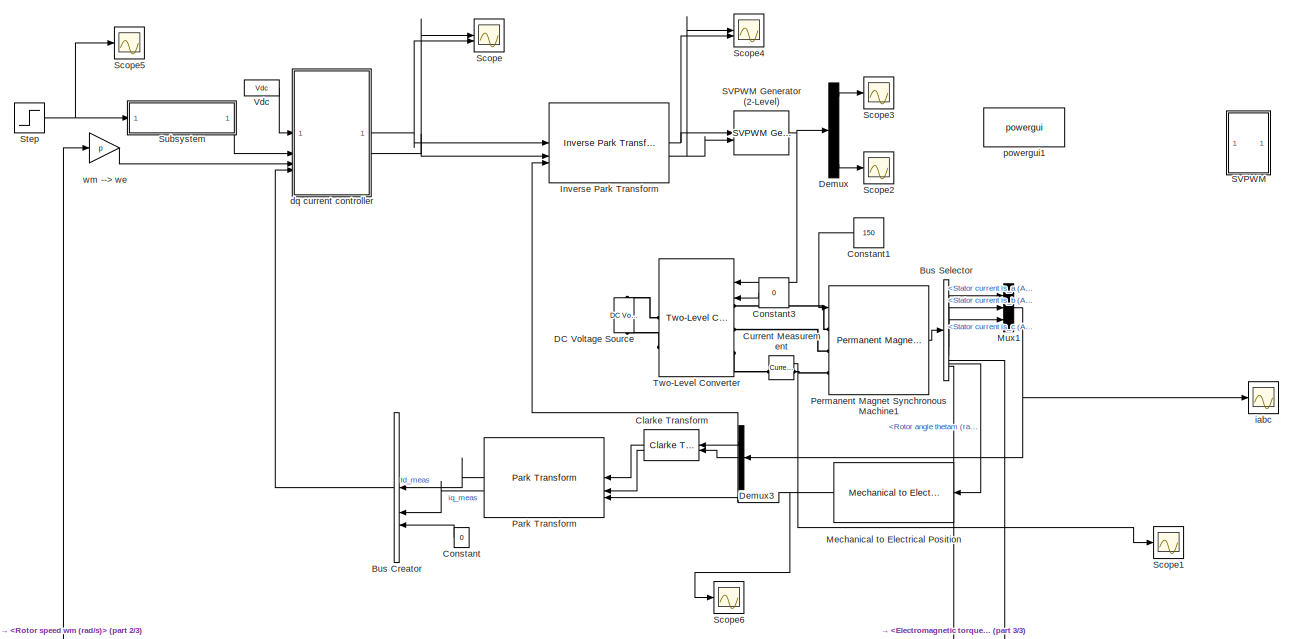
[diagram: root canvas - part 1/3, full width, top band]
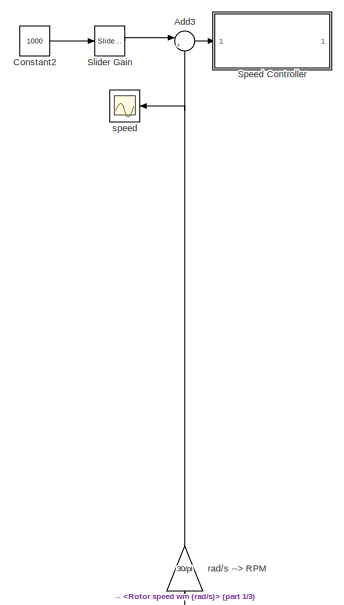
[diagram: root canvas - part 2/3, middle left region]
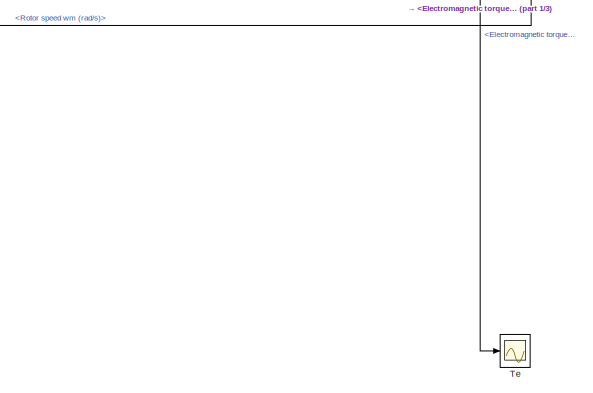
[diagram: root canvas - part 3/3, bottom right region]
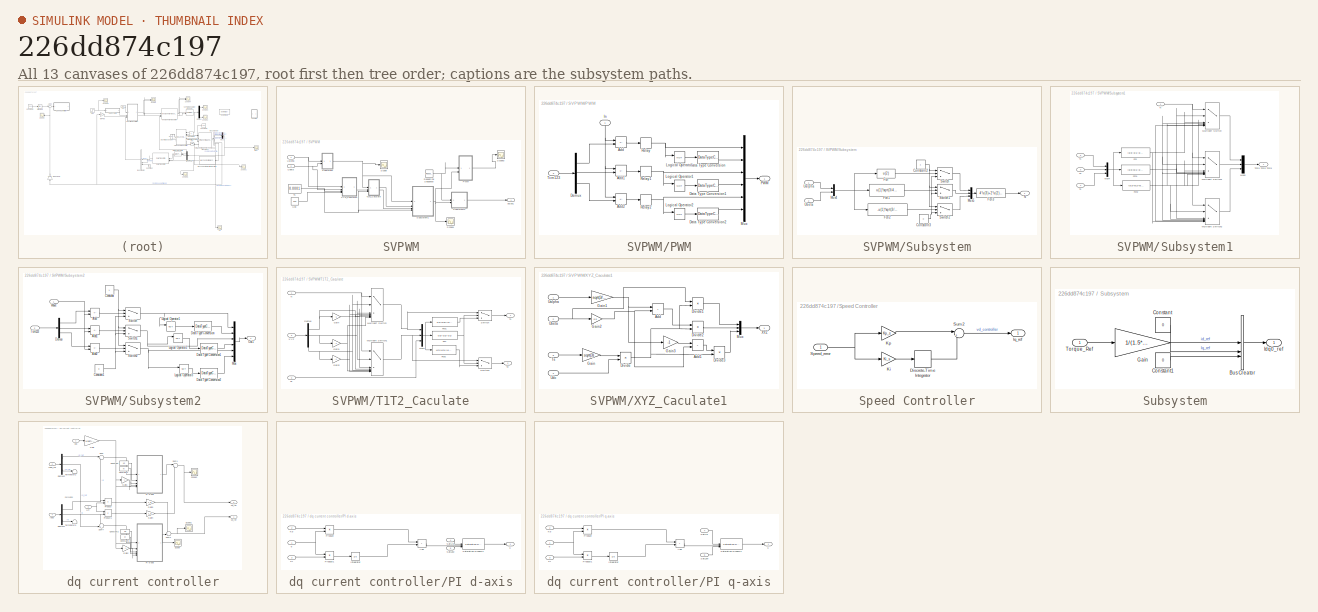
[diagram: thumbnail index - all 13 canvases of the model, root first then tree order]
MODEL slx_226dd874c197
KIND model
CONFIG AbsTol = auto
CONFIG EnableMultiTasking = on
CONFIG FixedStep = 0.0002
CONFIG InitFcn = Ts = 10e-6;\n\nR = 0.958;\nLd = 5.25e-3;\nLq = 12e-3;\nPn = 4;\nflux = 0.1827;
CONFIG MaxStep = auto
CONFIG MinStep = auto
CONFIG RelTol = 1e-4
CONFIG SampleTimeConstraint = Unconstrained
CONFIG SolverName = VariableStepAuto
CONFIG StartTime = 0.0
CONFIG StopTime = 1
BLOCK [Sum] Add3
  Inputs = |+-
BLOCK [BusCreator] Bus Creator
  DisplayOption = bar
  InheritFromInputs = on
  Inputs = 3
  NameLocation = top
BLOCK [BusSelector] Bus Selector
  OutputSignals = Stator current is_a (A),Stator current is_b (A),Stator current is_c (A),Rotor speed wm (rad/s),Rotor angle thetam (rad),Electromagnetic torque Te (N*m)
BLOCK [Reference] Clarke Transform  REF=mcbcontrolslib/Clarke Transform
  LibrarySourceBlock = mcbhdllib/Controls/Math Transforms/Clarke Transform
  NameLocation = top
  SourceBlock = mcbcontrolslib/Clarke Transform
  SourceType = Clarke Transform
BLOCK [Constant] Constant
  NameLocation = top
  Value = 0
BLOCK [Constant] Constant1
  NameLocation = top
  Value = 150
BLOCK [Constant] Constant2
  Value = 1000
BLOCK [Constant] Constant3
  NameLocation = top
  Value = 0
BLOCK [Reference] Current Measurement  REF=spsCurrentMeasurementLib/Current Measurement
  LibrarySourceBlock = sps_lib/Sensors and Measurements/Current Measurement
  SourceBlock = spsCurrentMeasurementLib/Current Measurement
  SourceType = Current Measurement
BLOCK [Reference] DC Voltage Source  REF=spsDCVoltageSourceLib/DC Voltage Source
  LibrarySourceBlock = sps_lib/Sources/DC Voltage Source
  SourceBlock = spsDCVoltageSourceLib/DC Voltage Source
  SourceType = DC Voltage Source
BLOCK [Demux] Demux
  Outputs = 6
BLOCK [Demux] Demux3
  NameLocation = top
  Outputs = 3
BLOCK [Reference] Inverse Park Transform  REF=mcbcontrolslib/Inverse Park Transform
  LibrarySourceBlock = mcbhdllib/Controls/Math Transforms/Inverse Park Transform
  SourceBlock = mcbcontrolslib/Inverse Park Transform
  SourceType = Inverse Park Transform
BLOCK [Reference] Mechanical to Electrical Position  REF=mcbpositiondecoderlib/Mechanical to Electrical Position
  LibrarySourceBlock = mcblib/Sensor Decoders/Mechanical to Electrical Position
  NameLocation = top
  SourceBlock = mcbpositiondecoderlib/Mechanical to Electrical Position
  SourceType = Mechanical to Electrical Position
BLOCK [Mux] Mux1
  DisplayOption = bar
  Inputs = 3
BLOCK [Reference] Park Transform  REF=mcbcontrolslib/Park Transform
  LibrarySourceBlock = mcbhdllib/Controls/Math Transforms/Park Transform
  NameLocation = top
  SourceBlock = mcbcontrolslib/Park Transform
  SourceType = Park Transform
BLOCK [Reference] Permanent Magnet Synchronous Machine1  REF=spsPermanentMagnetSynchronousMachineLib/Permanent Magnet
Synchronous Machine
  LibrarySourceBlock = sps_lib/Electrical Machines/Permanent Magnet\nSynchronous Machine
  SourceBlock = spsPermanentMagnetSynchronousMachineLib/Permanent Magnet\nSynchronous Machine
  SourceType = Permanent Magnet Synchronous Machine
BLOCK [SubSystem] SVPWM
  Commented = on
BLOCK [Reference] SVPWM Generator (2-Level)  REF=spsSVPWMGenerator2LevelLib/SVPWM Generator
(2-Level)
  LibrarySourceBlock = sps_lib/Power Electronics/Power Electronics Control/SVPWM Generator\n(2-Level)
  SourceBlock = spsSVPWMGenerator2LevelLib/SVPWM Generator\n(2-Level)
  SourceType = SVPWM Generator (2-Level)
BLOCK [SubSystem] SVPWM/PWM
BLOCK [Sum] SVPWM/PWM/Add
  IconShape = rectangular
  Inputs = +-
BLOCK [Sum] SVPWM/PWM/Add1
  IconShape = rectangular
  Inputs = +-
BLOCK [Sum] SVPWM/PWM/Add2
  IconShape = rectangular
  Inputs = +-
BLOCK [DataTypeConversion] SVPWM/PWM/Data Type Conversion
  OutDataTypeStr = double
  RndMeth = Floor
  SaturateOnIntegerOverflow = off
BLOCK [DataTypeConversion] SVPWM/PWM/Data Type Conversion1
  OutDataTypeStr = double
  RndMeth = Floor
  SaturateOnIntegerOverflow = off
BLOCK [DataTypeConversion] SVPWM/PWM/Data Type Conversion2
  OutDataTypeStr = double
  RndMeth = Floor
  SaturateOnIntegerOverflow = off
BLOCK [Demux] SVPWM/PWM/Demux
  Outputs = 3
BLOCK [Inport] SVPWM/PWM/In
  NameLocation = right
BLOCK [Logic] SVPWM/PWM/Logical Operator
  AllPortsSameDT = off
  Operator = NOT
  OutDataTypeStr = boolean
BLOCK [Logic] SVPWM/PWM/Logical Operator1
  AllPortsSameDT = off
  Operator = NOT
  OutDataTypeStr = boolean
BLOCK [Logic] SVPWM/PWM/Logical Operator2
  AllPortsSameDT = off
  Operator = NOT
  OutDataTypeStr = boolean
BLOCK [Mux] SVPWM/PWM/Mux
  DisplayOption = bar
  Inputs = 6
BLOCK [Outport] SVPWM/PWM/PWM
  VectorParamsAs1DForOutWhenUnconnected = off
BLOCK [Relay] SVPWM/PWM/Relay
  OffSwitchValue = -eps
BLOCK [Relay] SVPWM/PWM/Relay1
  OffSwitchValue = -eps
BLOCK [Relay] SVPWM/PWM/Relay2
  OffSwitchValue = -eps
BLOCK [Inport] SVPWM/PWM/Tcm123
  Port = 2
BLOCK [Reference] SVPWM/Repeating Sequence  REF=simulink/Sources/Repeating
Sequence
  SourceBlock = simulink/Sources/Repeating\nSequence
  SourceType = Repeating table
BLOCK [Scope] SVPWM/Scope
  Floating = off
  NumInputPorts = 1
  ScopeSpecificationString = Simulink.scopes.TimeScopeBlockCfg('CurrentConfiguration', extmgr.ConfigurationSet(extmgr.Configuration('Core','General UI',true),extmgr.Configuration('Core','Source UI',true),extmgr.Configuration('Sources','WiredSimulink',true,'DataLoggingVariableName','ScopeData2'),extmgr.Configuration('Visuals','Time Domain',true,'SerializedDisplays',{struct('MinYLimReal','0.375','MaxYLimReal','6.625','YLabelRea...<+1472ch>
BLOCK [Scope] SVPWM/Scope1
  Floating = off
  NumInputPorts = 1
  ScopeSpecificationString = Simulink.scopes.TimeScopeBlockCfg('CurrentConfiguration', extmgr.ConfigurationSet(extmgr.Configuration('Core','General UI',true),extmgr.Configuration('Core','Source UI',true),extmgr.Configuration('Sources','WiredSimulink',true,'DataLoggingVariableName','ScopeData4'),extmgr.Configuration('Visuals','Time Domain',true,'SerializedDisplays',{struct('MinYLimReal','-0.000006','MaxYLimReal','0.000056','YL...<+1498ch>
BLOCK [Scope] SVPWM/Scope3
  Floating = off
  NumInputPorts = 1
  ScopeSpecificationString = Simulink.scopes.TimeScopeBlockCfg('CurrentConfiguration', extmgr.ConfigurationSet(extmgr.Configuration('Core','General UI',true),extmgr.Configuration('Core','Source UI',true),extmgr.Configuration('Sources','WiredSimulink',true,'DataLoggingVariableName','ScopeData6'),extmgr.Configuration('Visuals','Time Domain',true,'SerializedDisplays',{struct('MinYLimReal','-0.125','MaxYLimReal','1.125','YLabelRe...<+1550ch>
BLOCK [SubSystem] SVPWM/Subsystem
BLOCK [Constant] SVPWM/Subsystem/Constant2
BLOCK [Constant] SVPWM/Subsystem/Constant3
  Value = 0
BLOCK [Fcn] SVPWM/Subsystem/Fcn
  Expr = u(2)
BLOCK [Fcn] SVPWM/Subsystem/Fcn1
  Expr = u(1)*sqrt(3/4)-0.5*u(2)
BLOCK [Fcn] SVPWM/Subsystem/Fcn2
  Expr = -u(1)*sqrt(3/4)-u(2)*0.5
BLOCK [Fcn] SVPWM/Subsystem/Fcn3
  Expr = 4*u(3)+2*u(2)+u(1)
BLOCK [Mux] SVPWM/Subsystem/Mux4
  DisplayOption = bar
  Inputs = 2
BLOCK [Mux] SVPWM/Subsystem/Mux5
  DisplayOption = bar
  Inputs = 3
BLOCK [Outport] SVPWM/Subsystem/N
  VectorParamsAs1DForOutWhenUnconnected = off
BLOCK [Switch] SVPWM/Subsystem/Switch
  Criteria = u2 > Threshold
  InputSameDT = off
  SaturateOnIntegerOverflow = off
BLOCK [Switch] SVPWM/Subsystem/Switch1
  Criteria = u2 > Threshold
  InputSameDT = off
  SaturateOnIntegerOverflow = off
BLOCK [Switch] SVPWM/Subsystem/Switch2
  Criteria = u2 > Threshold
  InputSameDT = off
  SaturateOnIntegerOverflow = off
BLOCK [Inport] SVPWM/Subsystem/Ualpha
BLOCK [Inport] SVPWM/Subsystem/Ubeta
  Port = 2
BLOCK [SubSystem] SVPWM/Subsystem1
BLOCK [Fcn] SVPWM/Subsystem1/Fcn
  Expr = (u(3)-u(1)-u(2))/4
BLOCK [Fcn] SVPWM/Subsystem1/Fcn1
  Expr = (u(3)+u(1)-u(2))/4
BLOCK [Fcn] SVPWM/Subsystem1/Fcn2
  Expr = (u(3)+u(2)+u(1))/4
BLOCK [MultiPortSwitch] SVPWM/Subsystem1/Multiport Switch
  InputSameDT = off
  Inputs = 6
  SaturateOnIntegerOverflow = off
BLOCK [MultiPortSwitch] SVPWM/Subsystem1/Multiport Switch1
  InputSameDT = off
  Inputs = 6
  SaturateOnIntegerOverflow = off
BLOCK [MultiPortSwitch] SVPWM/Subsystem1/Multiport Switch2
  InputSameDT = off
  Inputs = 6
  SaturateOnIntegerOverflow = off
BLOCK [Mux] SVPWM/Subsystem1/Mux4
  DisplayOption = bar
  Inputs = 3
BLOCK [Mux] SVPWM/Subsystem1/Mux5
  DisplayOption = bar
  Inputs = 3
BLOCK [Inport] SVPWM/Subsystem1/N
BLOCK [Inport] SVPWM/Subsystem1/T1
  Port = 2
BLOCK [Inport] SVPWM/Subsystem1/T2
  Port = 3
BLOCK [Outport] SVPWM/Subsystem1/Tcm1 Tcm2 Tcm3
  VectorParamsAs1DForOutWhenUnconnected = off
BLOCK [Inport] SVPWM/Subsystem1/Ts
  Port = 4
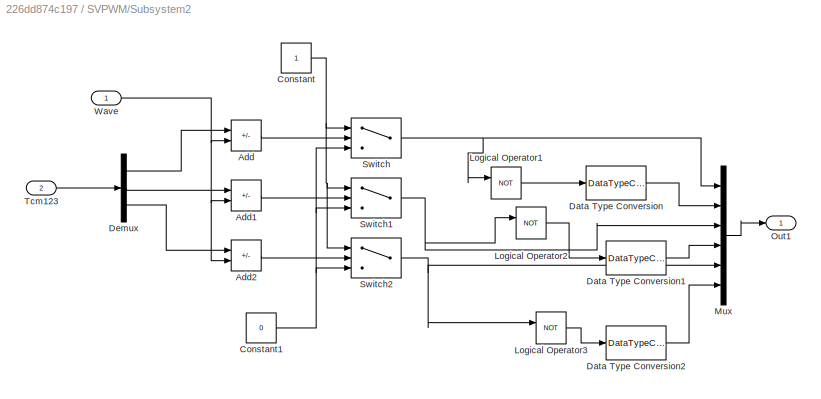
BLOCK [SubSystem] SVPWM/Subsystem2
BLOCK [Sum] SVPWM/Subsystem2/Add
  IconShape = rectangular
  Inputs = -+
BLOCK [Sum] SVPWM/Subsystem2/Add1
  IconShape = rectangular
  Inputs = -+
BLOCK [Sum] SVPWM/Subsystem2/Add2
  IconShape = rectangular
  Inputs = -+
BLOCK [Constant] SVPWM/Subsystem2/Constant
BLOCK [Constant] SVPWM/Subsystem2/Constant1
  Value = 0
BLOCK [DataTypeConversion] SVPWM/Subsystem2/Data Type Conversion
  OutDataTypeStr = double
  RndMeth = Floor
  SaturateOnIntegerOverflow = off
BLOCK [DataTypeConversion] SVPWM/Subsystem2/Data Type Conversion1
  OutDataTypeStr = double
  RndMeth = Floor
  SaturateOnIntegerOverflow = off
BLOCK [DataTypeConversion] SVPWM/Subsystem2/Data Type Conversion2
  OutDataTypeStr = double
  RndMeth = Floor
  SaturateOnIntegerOverflow = off
BLOCK [Demux] SVPWM/Subsystem2/Demux
  Outputs = 3
BLOCK [Logic] SVPWM/Subsystem2/Logical Operator1
  AllPortsSameDT = off
  Operator = NOT
  OutDataTypeStr = boolean
BLOCK [Logic] SVPWM/Subsystem2/Logical Operator2
  AllPortsSameDT = off
  Operator = NOT
  OutDataTypeStr = boolean
BLOCK [Logic] SVPWM/Subsystem2/Logical Operator3
  AllPortsSameDT = off
  Operator = NOT
  OutDataTypeStr = boolean
BLOCK [Mux] SVPWM/Subsystem2/Mux
  DisplayOption = bar
  Inputs = 6
BLOCK [Outport] SVPWM/Subsystem2/Out1
  VectorParamsAs1DForOutWhenUnconnected = off
BLOCK [Switch] SVPWM/Subsystem2/Switch
  Criteria = u2 > Threshold
  InputSameDT = off
  SaturateOnIntegerOverflow = off
BLOCK [Switch] SVPWM/Subsystem2/Switch1
  Criteria = u2 > Threshold
  InputSameDT = off
  SaturateOnIntegerOverflow = off
BLOCK [Switch] SVPWM/Subsystem2/Switch2
  Criteria = u2 > Threshold
  InputSameDT = off
  SaturateOnIntegerOverflow = off
BLOCK [Inport] SVPWM/Subsystem2/Tcm123
  Port = 2
BLOCK [Inport] SVPWM/Subsystem2/Wave
BLOCK [SubSystem] SVPWM/T1T2_Caculate
BLOCK [Demux] SVPWM/T1T2_Caculate/Demux
  Outputs = 3
BLOCK [Fcn] SVPWM/T1T2_Caculate/Fcn
  Expr = u(3)-u(2)-u(1)
BLOCK [Fcn] SVPWM/T1T2_Caculate/Fcn1
  Expr = u(1)*u(3)/(u(1)+u(2))
BLOCK [Fcn] SVPWM/T1T2_Caculate/Fcn2
  Expr = u(2)*u(3)/(u(1)+u(2))
BLOCK [Gain] SVPWM/T1T2_Caculate/Gain
  Gain = -1
BLOCK [Gain] SVPWM/T1T2_Caculate/Gain1
  Gain = -1
BLOCK [Gain] SVPWM/T1T2_Caculate/Gain2
  Gain = -1
BLOCK [MultiPortSwitch] SVPWM/T1T2_Caculate/Multiport Switch
  InputSameDT = off
  Inputs = 6
  SaturateOnIntegerOverflow = off
BLOCK [MultiPortSwitch] SVPWM/T1T2_Caculate/Multiport Switch1
  InputSameDT = off
  Inputs = 6
  SaturateOnIntegerOverflow = off
BLOCK [Mux] SVPWM/T1T2_Caculate/Mux4
  DisplayOption = bar
  Inputs = 3
BLOCK [Inport] SVPWM/T1T2_Caculate/N
BLOCK [Switch] SVPWM/T1T2_Caculate/Switch
  Criteria = u2 > Threshold
  InputSameDT = off
  SaturateOnIntegerOverflow = off
BLOCK [Switch] SVPWM/T1T2_Caculate/Switch1
  Criteria = u2 > Threshold
  InputSameDT = off
  SaturateOnIntegerOverflow = off
BLOCK [Outport] SVPWM/T1T2_Caculate/T1
  VectorParamsAs1DForOutWhenUnconnected = off
BLOCK [Outport] SVPWM/T1T2_Caculate/T2
  Port = 2
  VectorParamsAs1DForOutWhenUnconnected = off
BLOCK [Inport] SVPWM/T1T2_Caculate/Ts
  Port = 3
BLOCK [Inport] SVPWM/T1T2_Caculate/XYZ
  Port = 2
BLOCK [Constant] SVPWM/Ts
  Value = 0.0001
BLOCK [Inport] SVPWM/Ualpha
BLOCK [Inport] SVPWM/Ubeta
  Port = 2
BLOCK [Constant] SVPWM/Udc
  Value = 600
BLOCK [SubSystem] SVPWM/XYZ_Caculate1
BLOCK [Sum] SVPWM/XYZ_Caculate1/Add
  IconShape = rectangular
BLOCK [Sum] SVPWM/XYZ_Caculate1/Add1
  IconShape = rectangular
BLOCK [Product] SVPWM/XYZ_Caculate1/Divide
  Inputs = */
BLOCK [Product] SVPWM/XYZ_Caculate1/Divide1
  Inputs = **
BLOCK [Product] SVPWM/XYZ_Caculate1/Divide2
  Inputs = **
BLOCK [Product] SVPWM/XYZ_Caculate1/Divide3
  Inputs = **
BLOCK [Gain] SVPWM/XYZ_Caculate1/Gain
  Gain = sqrt(3)
BLOCK [Gain] SVPWM/XYZ_Caculate1/Gain1
  Gain = sqrt(3/4)
BLOCK [Gain] SVPWM/XYZ_Caculate1/Gain2
  Gain = 0.5
BLOCK [Gain] SVPWM/XYZ_Caculate1/Gain3
  Gain = -1
BLOCK [Mux] SVPWM/XYZ_Caculate1/Mux
  DisplayOption = bar
  Inputs = 3
BLOCK [Inport] SVPWM/XYZ_Caculate1/Ts
  Port = 3
BLOCK [Inport] SVPWM/XYZ_Caculate1/Ualpha
BLOCK [Inport] SVPWM/XYZ_Caculate1/Ubeta
  Port = 2
BLOCK [Inport] SVPWM/XYZ_Caculate1/Udc
  Port = 4
BLOCK [Outport] SVPWM/XYZ_Caculate1/XYZ 
  VectorParamsAs1DForOutWhenUnconnected = off
BLOCK [Outport] SVPWM/pulse1
  VectorParamsAs1DForOutWhenUnconnected = off
BLOCK [Scope] Scope
  Floating = off
  NumInputPorts = 2
  ScopeSpecificationString = Simulink.scopes.TimeScopeBlockCfg('CurrentConfiguration', extmgr.ConfigurationSet(extmgr.Configuration('Core','General UI',true),extmgr.Configuration('Core','Source UI',true),extmgr.Configuration('Sources','WiredSimulink',true,'DataLoggingVariableName','ScopeData2'),extmgr.Configuration('Visuals','Time Domain',true,'SerializedDisplays',{struct('MinYLimReal','-90.47604','MaxYLimReal','107.23716','Y...<+1557ch>
BLOCK [Scope] Scope1
  Floating = off
  NumInputPorts = 1
  ScopeSpecificationString = Simulink.scopes.TimeScopeBlockCfg('CurrentConfiguration', extmgr.ConfigurationSet(extmgr.Configuration('Core','General UI',true),extmgr.Configuration('Core','Source UI',true),extmgr.Configuration('Sources','WiredSimulink',true,'DataLoggingVariableName','ScopeData1'),extmgr.Configuration('Visuals','Time Domain',true,'SerializedDisplays',{struct('MinYLimReal','-154.88796','MaxYLimReal','573.10332','...<+1533ch>
BLOCK [Scope] Scope2
  Floating = off
  NumInputPorts = 1
  ScopeSpecificationString = Simulink.scopes.TimeScopeBlockCfg('CurrentConfiguration', extmgr.ConfigurationSet(extmgr.Configuration('Core','General UI',true),extmgr.Configuration('Core','Source UI',true),extmgr.Configuration('Sources','WiredSimulink',true,'DataLoggingVariableName','ScopeData2'),extmgr.Configuration('Visuals','Time Domain',true,'SerializedDisplays',{struct('MinYLimReal','0.04975','MaxYLimReal','1.03922','YLabe...<+1503ch>
BLOCK [Scope] Scope3
  Floating = off
  NumInputPorts = 1
  ScopeSpecificationString = Simulink.scopes.TimeScopeBlockCfg('CurrentConfiguration', extmgr.ConfigurationSet(extmgr.Configuration('Core','General UI',true),extmgr.Configuration('Core','Source UI',true),extmgr.Configuration('Sources','WiredSimulink',true,'DataLoggingVariableName','ScopeData3'),extmgr.Configuration('Visuals','Time Domain',true,'SerializedDisplays',{struct('MinYLimReal','-0.03127','MaxYLimReal','1.00463','YLab...<+1507ch>
BLOCK [Scope] Scope4
  Floating = off
  NumInputPorts = 2
  ScopeSpecificationString = Simulink.scopes.TimeScopeBlockCfg('CurrentConfiguration', extmgr.ConfigurationSet(extmgr.Configuration('Core','General UI',true),extmgr.Configuration('Core','Source UI',true),extmgr.Configuration('Sources','WiredSimulink',true,'DataLoggingVariableName','ScopeData1'),extmgr.Configuration('Visuals','Time Domain',true,'SerializedDisplays',{struct('MinYLimReal','-126.0196','MaxYLimReal','125.80318','Y...<+1600ch>
BLOCK [Scope] Scope5
  Floating = off
  NumInputPorts = 1
  ScopeSpecificationString = Simulink.scopes.TimeScopeBlockCfg('CurrentConfiguration', extmgr.ConfigurationSet(extmgr.Configuration('Core','General UI',true),extmgr.Configuration('Core','Source UI',true),extmgr.Configuration('Sources','WiredSimulink',true,'DataLoggingVariableName','ScopeData3'),extmgr.Configuration('Visuals','Time Domain',true,'SerializedDisplays',{struct('MinYLimReal','-2.5','MaxYLimReal','22.5','YLabelReal'...<+1465ch>
BLOCK [Scope] Scope6
  Floating = off
  NumInputPorts = 1
  ScopeSpecificationString = Simulink.scopes.TimeScopeBlockCfg('CurrentConfiguration', extmgr.ConfigurationSet(extmgr.Configuration('Core','General UI',true),extmgr.Configuration('Core','Source UI',true),extmgr.Configuration('Sources','WiredSimulink',true,'DataLoggingVariableName','ScopeData4'),extmgr.Configuration('Visuals','Time Domain',true,'SerializedDisplays',{struct('MinYLimReal','-0.28057','MaxYLimReal','6.40872','YLab...<+1500ch>
BLOCK [Reference] Slider Gain  REF=simulink/Math
Operations/Slider
Gain
  SourceBlock = simulink/Math\nOperations/Slider\nGain
  SourceType = Slider Gain
BLOCK [SubSystem] Speed Controller
BLOCK [DiscreteIntegrator] Speed Controller/Discrete-Time Integrator
  ICPrevOutput = DiscIntNeverNeededParam
  ICPrevScaledInput = DiscIntNeverNeededParam
  InitialConditionSetting = Auto
  SampleTime = Ts
BLOCK [Outport] Speed Controller/Iq_ref
BLOCK [Gain] Speed Controller/Ki
  Gain = Ki_s
BLOCK [Gain] Speed Controller/Kp
  Gain = Kp_s
BLOCK [Inport] Speed Controller/Speed_error
BLOCK [Sum] Speed Controller/Sum2
  Inputs = |++
BLOCK [Step] Step
  After = 20
  SampleTime = 0
  Time = 0.1
BLOCK [SubSystem] Subsystem
BLOCK [BusCreator] Subsystem/Bus Creator
  DisplayOption = bar
  InheritFromInputs = on
  Inputs = 3
BLOCK [Constant] Subsystem/Constant
  Value = 0
BLOCK [Constant] Subsystem/Constant1
  Value = 0
BLOCK [Gain] Subsystem/Gain
  Gain = 1/(1.5*p*Flux)
BLOCK [Outport] Subsystem/Idq0_ref
BLOCK [Inport] Subsystem/Torque_Ref
BLOCK [Scope] Te
  Floating = off
  NameLocation = top
  NumInputPorts = 2
  ScopeSpecificationString = Simulink.scopes.TimeScopeBlockCfg('CurrentConfiguration', extmgr.ConfigurationSet(extmgr.Configuration('Core','General UI',true),extmgr.Configuration('Core','Source UI',true),extmgr.Configuration('Sources','WiredSimulink',true,'DataLogging',true,'DataLoggingVariableName','Te','DataLoggingSaveFormat','StructureWithTime','DataLoggingDecimation','1','DataLoggingDecimateData',true),extmgr.Configuratio...<+1886ch>
BLOCK [Reference] Two-Level Converter  REF=spsTwoLevelConverterLib/Two-Level Converter
  SourceBlock = spsTwoLevelConverterLib/Two-Level Converter
  SourceType = Two-Level Converter
BLOCK [Constant] Vdc
  Value = Vdc
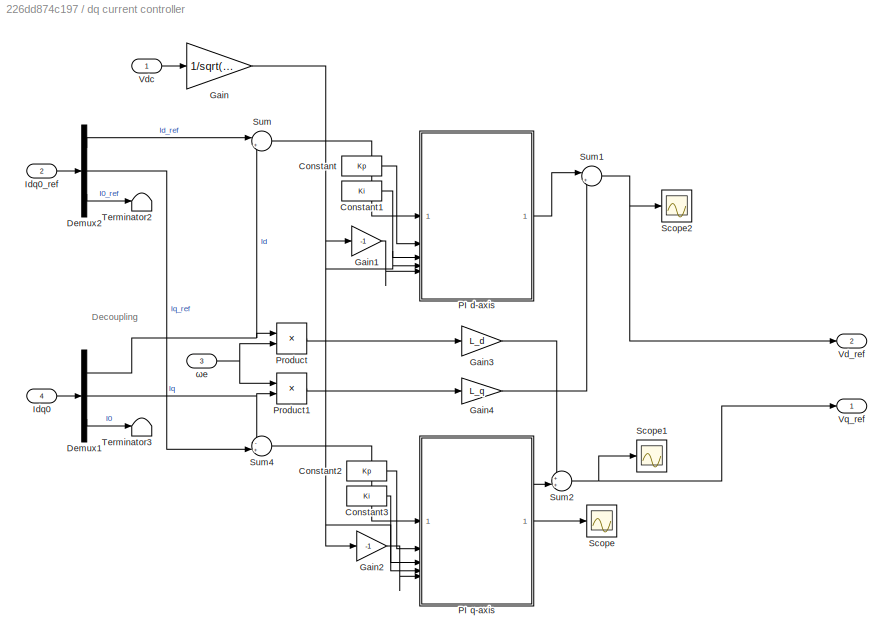
BLOCK [SubSystem] dq current controller
  NameLocation = top
BLOCK [Constant] dq current controller/Constant
  OutDataTypeStr = single
  Value = Kp
BLOCK [Constant] dq current controller/Constant1
  OutDataTypeStr = single
  Value = Ki
BLOCK [Constant] dq current controller/Constant2
  OutDataTypeStr = single
  Value = Kp
BLOCK [Constant] dq current controller/Constant3
  OutDataTypeStr = single
  Value = Ki
BLOCK [Demux] dq current controller/Demux1
  Outputs = 3
BLOCK [Demux] dq current controller/Demux2
  Outputs = 3
BLOCK [Gain] dq current controller/Gain
  Gain = 1/sqrt(2)
BLOCK [Gain] dq current controller/Gain1
  Gain = -1
BLOCK [Gain] dq current controller/Gain2
  Gain = -1
BLOCK [Gain] dq current controller/Gain3
  Gain = L_d
BLOCK [Gain] dq current controller/Gain4
  Gain = L_q
BLOCK [Inport] dq current controller/Idq0
  Port = 4
BLOCK [Inport] dq current controller/Idq0_ref
  Port = 2
BLOCK [SubSystem] dq current controller/PI d-axis
BLOCK [Sum] dq current controller/PI d-axis/Add
  IconShape = rectangular
BLOCK [Integrator] dq current controller/PI d-axis/Integrator
BLOCK [Inport] dq current controller/PI d-axis/Ki
  Port = 3
BLOCK [Inport] dq current controller/PI d-axis/Kp
  Port = 2
BLOCK [Product] dq current controller/PI d-axis/Product
BLOCK [Product] dq current controller/PI d-axis/Product1
BLOCK [Inport] dq current controller/PI d-axis/SatLow
  Port = 5
BLOCK [Inport] dq current controller/PI d-axis/SatUp
  NameLocation = top
  Port = 4
BLOCK [Reference] dq current controller/PI d-axis/Saturation Dynamic  REF=simulink/Discontinuities/Saturation
Dynamic
  SourceBlock = simulink/Discontinuities/Saturation\nDynamic
  SourceType = Saturation Dynamic
BLOCK [Inport] dq current controller/PI d-axis/e
BLOCK [Outport] dq current controller/PI d-axis/u
BLOCK [SubSystem] dq current controller/PI q-axis
BLOCK [Sum] dq current controller/PI q-axis/Add
  IconShape = rectangular
BLOCK [Integrator] dq current controller/PI q-axis/Integrator
BLOCK [Inport] dq current controller/PI q-axis/Ki
  Port = 3
BLOCK [Inport] dq current controller/PI q-axis/Kp
  Port = 2
BLOCK [Product] dq current controller/PI q-axis/Product
BLOCK [Product] dq current controller/PI q-axis/Product1
BLOCK [Inport] dq current controller/PI q-axis/SatLow
  Port = 5
BLOCK [Inport] dq current controller/PI q-axis/SatUp
  Port = 4
BLOCK [Reference] dq current controller/PI q-axis/Saturation Dynamic  REF=simulink/Discontinuities/Saturation
Dynamic
  SourceBlock = simulink/Discontinuities/Saturation\nDynamic
  SourceType = Saturation Dynamic
BLOCK [Inport] dq current controller/PI q-axis/e
BLOCK [Outport] dq current controller/PI q-axis/u
BLOCK [Product] dq current controller/Product
BLOCK [Product] dq current controller/Product1
BLOCK [Scope] dq current controller/Scope
  Floating = off
  NumInputPorts = 1
  ScopeSpecificationString = Simulink.scopes.TimeScopeBlockCfg('CurrentConfiguration', extmgr.ConfigurationSet(extmgr.Configuration('Core','General UI',true),extmgr.Configuration('Core','Source UI',true),extmgr.Configuration('Sources','WiredSimulink',true,'DataLoggingVariableName','ScopeData5'),extmgr.Configuration('Visuals','Time Domain',true,'SerializedDisplays',{struct('MinYLimReal','-79.54951','MaxYLimReal','8.83883','YLa...<+1461ch>
BLOCK [Scope] dq current controller/Scope1
  Floating = off
  NumInputPorts = 1
  ScopeSpecificationString = Simulink.scopes.TimeScopeBlockCfg('CurrentConfiguration', extmgr.ConfigurationSet(extmgr.Configuration('Core','General UI',true),extmgr.Configuration('Core','Source UI',true),extmgr.Configuration('Sources','WiredSimulink',true,'DataLoggingVariableName','ScopeData6'),extmgr.Configuration('Visuals','Time Domain',true,'SerializedDisplays',{struct('MinYLimReal','-858.05898','MaxYLimReal','95.33989','Y...<+1464ch>
BLOCK [Scope] dq current controller/Scope2
  Floating = off
  NumInputPorts = 1
  ScopeSpecificationString = Simulink.scopes.TimeScopeBlockCfg('CurrentConfiguration', extmgr.ConfigurationSet(extmgr.Configuration('Core','General UI',true),extmgr.Configuration('Core','Source UI',true),extmgr.Configuration('Sources','WiredSimulink',true,'DataLoggingVariableName','ScopeData7'),extmgr.Configuration('Visuals','Time Domain',true,'SerializedDisplays',{struct('MinYLimReal','-193.39656','MaxYLimReal','235.50362','...<+1466ch>
BLOCK [Sum] dq current controller/Sum
  Inputs = |+-
BLOCK [Sum] dq current controller/Sum1
  Inputs = |+-
BLOCK [Sum] dq current controller/Sum2
  Inputs = ++|
BLOCK [Sum] dq current controller/Sum4
  Inputs = -+|
BLOCK [Terminator] dq current controller/Terminator2
BLOCK [Terminator] dq current controller/Terminator3
BLOCK [Outport] dq current controller/Vd_ref
  Port = 2
BLOCK [Inport] dq current controller/Vdc
BLOCK [Outport] dq current controller/Vq_ref
BLOCK [Inport] dq current controller/ωe
  Port = 3
BLOCK [Scope] iabc
  Floating = off
  NumInputPorts = 1
  ScopeSpecificationString = Simulink.scopes.TimeScopeBlockCfg('CurrentConfiguration', extmgr.ConfigurationSet(extmgr.Configuration('Core','General UI',true),extmgr.Configuration('Core','Source UI',true),extmgr.Configuration('Sources','WiredSimulink',true,'DataLogging',true,'DataLoggingVariableName','Iabc','DataLoggingSaveFormat','StructureWithTime','DataLoggingDecimation','1','DataLoggingDecimateData',true),extmgr.Configurat...<+1958ch>
BLOCK [Reference] powergui1  REF=sps_lib/powergui
  LibrarySourceBlock = sps_lib/powergui
  Priority = 1
  SourceBlock = sps_lib/powergui
  SourceType = PSB option menu block
BLOCK [Gain] rad//s --> RPM
  Gain = 30/pi
  NameLocation = right
BLOCK [Scope] speed
  Floating = off
  NumInputPorts = 1
  ScopeSpecificationString = Simulink.scopes.TimeScopeBlockCfg('CurrentConfiguration', extmgr.ConfigurationSet(extmgr.Configuration('Core','General UI',true,'DisplayFullSourceName',true),extmgr.Configuration('Core','Source UI',true),extmgr.Configuration('Sources','WiredSimulink',true,'DataLogging',true,'DataLoggingVariableName','ScopeData2','DataLoggingSaveFormat','StructureWithTime','DataLoggingDecimation','1','DataLoggingDe...<+1898ch>
BLOCK [Gain] wm --> we
  Gain = p
ANNOTATION dq current controller: Decoupling
LINE Add3:1 -> Speed Controller:1
LINE Bus Creator:1 -> dq current controller:4
LINE Bus Selector:1 -> Mux1:1
LINE Bus Selector:2 -> Mux1:2
LINE Bus Selector:3 -> Mux1:3
NET Bus Selector:4 -> rad//s --> RPM:1, wm --> we:1
LINE Bus Selector:5 -> Mechanical to Electrical Position:1
LINE Bus Selector:6 -> Te:1
LINE Clarke Transform:1 -> Park Transform:1
LINE Clarke Transform:2 -> Park Transform:2
LINE Constant1:1 -> Permanent Magnet Synchronous Machine1:1
LINE Constant2:1 -> Slider Gain:1
LINE Constant3:1 -> Two-Level Converter:2
LINE Constant:1 -> Bus Creator:3
LINE Current Measurement:1 -> Scope1:1
LINE Demux3:1 -> Clarke Transform:1
LINE Demux3:2 -> Clarke Transform:2
LINE Demux:1 -> Scope3:1
LINE Demux:6 -> Scope2:1
NET Inverse Park Transform:1 -> SVPWM Generator (2-Level):1, Scope4:2
NET Inverse Park Transform:2 -> SVPWM Generator (2-Level):2, Scope4:1
NET Mechanical to Electrical Position:1 -> Inverse Park Transform:3, Park Transform:3, Scope6:1
NET Mux1:1 -> Demux3:1, iabc:1
LINE Park Transform:1 -> Bus Creator:1
LINE Park Transform:2 -> Bus Creator:2
LINE Permanent Magnet Synchronous Machine1:1 -> Bus Selector:1
NET SVPWM Generator (2-Level):1 -> Demux:1, Two-Level Converter:1
LINE SVPWM/PWM/Add1:1 -> SVPWM/PWM/Relay1:1
LINE SVPWM/PWM/Add2:1 -> SVPWM/PWM/Relay2:1
LINE SVPWM/PWM/Add:1 -> SVPWM/PWM/Relay:1
LINE SVPWM/PWM/Data Type Conversion1:1 -> SVPWM/PWM/Mux:4
LINE SVPWM/PWM/Data Type Conversion2:1 -> SVPWM/PWM/Mux:6
LINE SVPWM/PWM/Data Type Conversion:1 -> SVPWM/PWM/Mux:2
LINE SVPWM/PWM/Demux:1 -> SVPWM/PWM/Add:2
LINE SVPWM/PWM/Demux:2 -> SVPWM/PWM/Add1:2
LINE SVPWM/PWM/Demux:3 -> SVPWM/PWM/Add2:2
NET SVPWM/PWM/In:1 -> SVPWM/PWM/Add1:1, SVPWM/PWM/Add2:1, SVPWM/PWM/Add:1
LINE SVPWM/PWM/Logical Operator1:1 -> SVPWM/PWM/Data Type Conversion1:1
LINE SVPWM/PWM/Logical Operator2:1 -> SVPWM/PWM/Data Type Conversion2:1
LINE SVPWM/PWM/Logical Operator:1 -> SVPWM/PWM/Data Type Conversion:1
LINE SVPWM/PWM/Mux:1 -> SVPWM/PWM/PWM:1
NET SVPWM/PWM/Relay1:1 -> SVPWM/PWM/Logical Operator1:1, SVPWM/PWM/Mux:3
NET SVPWM/PWM/Relay2:1 -> SVPWM/PWM/Logical Operator2:1, SVPWM/PWM/Mux:5
NET SVPWM/PWM/Relay:1 -> SVPWM/PWM/Logical Operator:1, SVPWM/PWM/Mux:1
LINE SVPWM/PWM/Tcm123:1 -> SVPWM/PWM/Demux:1
LINE SVPWM/PWM:1 -> SVPWM/Scope3:1
NET SVPWM/Repeating Sequence:1 -> SVPWM/PWM:1, SVPWM/Subsystem2:1
NET SVPWM/Subsystem/Constant2:1 -> SVPWM/Subsystem/Switch1:1, SVPWM/Subsystem/Switch2:1, SVPWM/Subsystem/Switch:1
NET SVPWM/Subsystem/Constant3:1 -> SVPWM/Subsystem/Switch1:3, SVPWM/Subsystem/Switch2:3, SVPWM/Subsystem/Switch:3
LINE SVPWM/Subsystem/Fcn1:1 -> SVPWM/Subsystem/Switch1:2
LINE SVPWM/Subsystem/Fcn2:1 -> SVPWM/Subsystem/Switch2:2
LINE SVPWM/Subsystem/Fcn3:1 -> SVPWM/Subsystem/N:1
LINE SVPWM/Subsystem/Fcn:1 -> SVPWM/Subsystem/Switch:2
NET SVPWM/Subsystem/Mux4:1 -> SVPWM/Subsystem/Fcn1:1, SVPWM/Subsystem/Fcn2:1, SVPWM/Subsystem/Fcn:1
LINE SVPWM/Subsystem/Mux5:1 -> SVPWM/Subsystem/Fcn3:1
LINE SVPWM/Subsystem/Switch1:1 -> SVPWM/Subsystem/Mux5:2
LINE SVPWM/Subsystem/Switch2:1 -> SVPWM/Subsystem/Mux5:3
LINE SVPWM/Subsystem/Switch:1 -> SVPWM/Subsystem/Mux5:1
LINE SVPWM/Subsystem/Ualpha:1 -> SVPWM/Subsystem/Mux4:1
LINE SVPWM/Subsystem/Ubeta:1 -> SVPWM/Subsystem/Mux4:2
NET SVPWM/Subsystem1/Fcn1:1 -> SVPWM/Subsystem1/Multiport Switch1:4, SVPWM/Subsystem1/Multiport Switch1:5, SVPWM/Subsystem1/Multiport Switch2:3, SVPWM/Subsystem1/Multiport Switch2:6, SVPWM/Subsystem1/Multiport Switch:2, SVPWM/Subsystem1/Multiport Switch:7
NET SVPWM/Subsystem1/Fcn2:1 -> SVPWM/Subsystem1/Multiport Switch1:3, SVPWM/Subsystem1/Multiport Switch1:7, SVPWM/Subsystem1/Multiport Switch2:2, SVPWM/Subsystem1/Multiport Switch2:4, SVPWM/Subsystem1/Multiport Switch:5, SVPWM/Subsystem1/Multiport Switch:6
NET SVPWM/Subsystem1/Fcn:1 -> SVPWM/Subsystem1/Multiport Switch1:2, SVPWM/Subsystem1/Multiport Switch1:6, SVPWM/Subsystem1/Multiport Switch2:5, SVPWM/Subsystem1/Multiport Switch2:7, SVPWM/Subsystem1/Multiport Switch:3, SVPWM/Subsystem1/Multiport Switch:4
LINE SVPWM/Subsystem1/Multiport Switch1:1 -> SVPWM/Subsystem1/Mux5:2
LINE SVPWM/Subsystem1/Multiport Switch2:1 -> SVPWM/Subsystem1/Mux5:3
LINE SVPWM/Subsystem1/Multiport Switch:1 -> SVPWM/Subsystem1/Mux5:1
NET SVPWM/Subsystem1/Mux4:1 -> SVPWM/Subsystem1/Fcn1:1, SVPWM/Subsystem1/Fcn2:1, SVPWM/Subsystem1/Fcn:1
LINE SVPWM/Subsystem1/Mux5:1 -> SVPWM/Subsystem1/Tcm1 Tcm2 Tcm3:1
NET SVPWM/Subsystem1/N:1 -> SVPWM/Subsystem1/Multiport Switch1:1, SVPWM/Subsystem1/Multiport Switch2:1, SVPWM/Subsystem1/Multiport Switch:1
LINE SVPWM/Subsystem1/T1:1 -> SVPWM/Subsystem1/Mux4:1
LINE SVPWM/Subsystem1/T2:1 -> SVPWM/Subsystem1/Mux4:2
LINE SVPWM/Subsystem1/Ts:1 -> SVPWM/Subsystem1/Mux4:3
NET SVPWM/Subsystem1:1 -> SVPWM/PWM:2, SVPWM/Scope1:1, SVPWM/Subsystem2:2
LINE SVPWM/Subsystem2/Add1:1 -> SVPWM/Subsystem2/Switch1:2
LINE SVPWM/Subsystem2/Add2:1 -> SVPWM/Subsystem2/Switch2:2
LINE SVPWM/Subsystem2/Add:1 -> SVPWM/Subsystem2/Switch:2
NET SVPWM/Subsystem2/Constant1:1 -> SVPWM/Subsystem2/Switch1:3, SVPWM/Subsystem2/Switch2:3, SVPWM/Subsystem2/Switch:3
NET SVPWM/Subsystem2/Constant:1 -> SVPWM/Subsystem2/Switch1:1, SVPWM/Subsystem2/Switch2:1, SVPWM/Subsystem2/Switch:1
LINE SVPWM/Subsystem2/Data Type Conversion1:1 -> SVPWM/Subsystem2/Mux:4
LINE SVPWM/Subsystem2/Data Type Conversion2:1 -> SVPWM/Subsystem2/Mux:6
LINE SVPWM/Subsystem2/Data Type Conversion:1 -> SVPWM/Subsystem2/Mux:2
LINE SVPWM/Subsystem2/Demux:1 -> SVPWM/Subsystem2/Add:1
LINE SVPWM/Subsystem2/Demux:2 -> SVPWM/Subsystem2/Add1:1
LINE SVPWM/Subsystem2/Demux:3 -> SVPWM/Subsystem2/Add2:1
LINE SVPWM/Subsystem2/Logical Operator1:1 -> SVPWM/Subsystem2/Data Type Conversion:1
LINE SVPWM/Subsystem2/Logical Operator2:1 -> SVPWM/Subsystem2/Data Type Conversion1:1
LINE SVPWM/Subsystem2/Logical Operator3:1 -> SVPWM/Subsystem2/Data Type Conversion2:1
LINE SVPWM/Subsystem2/Mux:1 -> SVPWM/Subsystem2/Out1:1
NET SVPWM/Subsystem2/Switch1:1 -> SVPWM/Subsystem2/Logical Operator2:1, SVPWM/Subsystem2/Mux:3
NET SVPWM/Subsystem2/Switch2:1 -> SVPWM/Subsystem2/Logical Operator3:1, SVPWM/Subsystem2/Mux:5
NET SVPWM/Subsystem2/Switch:1 -> SVPWM/Subsystem2/Logical Operator1:1, SVPWM/Subsystem2/Mux:1
LINE SVPWM/Subsystem2/Tcm123:1 -> SVPWM/Subsystem2/Demux:1
NET SVPWM/Subsystem2/Wave:1 -> SVPWM/Subsystem2/Add1:2, SVPWM/Subsystem2/Add2:2, SVPWM/Subsystem2/Add:2
LINE SVPWM/Subsystem2:1 -> SVPWM/pulse1:1
NET SVPWM/Subsystem:1 -> SVPWM/Scope:1, SVPWM/Subsystem1:1, SVPWM/T1T2_Caculate:1
NET SVPWM/T1T2_Caculate/Demux:1 -> SVPWM/T1T2_Caculate/Gain:1, SVPWM/T1T2_Caculate/Multiport Switch1:4, SVPWM/T1T2_Caculate/Multiport Switch:6
NET SVPWM/T1T2_Caculate/Demux:2 -> SVPWM/T1T2_Caculate/Gain1:1, SVPWM/T1T2_Caculate/Multiport Switch1:2, SVPWM/T1T2_Caculate/Multiport Switch:3
NET SVPWM/T1T2_Caculate/Demux:3 -> SVPWM/T1T2_Caculate/Gain2:1, SVPWM/T1T2_Caculate/Multiport Switch1:5, SVPWM/T1T2_Caculate/Multiport Switch:2
LINE SVPWM/T1T2_Caculate/Fcn1:1 -> SVPWM/T1T2_Caculate/Switch:3
LINE SVPWM/T1T2_Caculate/Fcn2:1 -> SVPWM/T1T2_Caculate/Switch1:3
NET SVPWM/T1T2_Caculate/Fcn:1 -> SVPWM/T1T2_Caculate/Switch1:2, SVPWM/T1T2_Caculate/Switch:2
NET SVPWM/T1T2_Caculate/Gain1:1 -> SVPWM/T1T2_Caculate/Multiport Switch1:6, SVPWM/T1T2_Caculate/Multiport Switch:7
NET SVPWM/T1T2_Caculate/Gain2:1 -> SVPWM/T1T2_Caculate/Multiport Switch1:7, SVPWM/T1T2_Caculate/Multiport Switch:4
NET SVPWM/T1T2_Caculate/Gain:1 -> SVPWM/T1T2_Caculate/Multiport Switch1:3, SVPWM/T1T2_Caculate/Multiport Switch:5
NET SVPWM/T1T2_Caculate/Multiport Switch1:1 -> SVPWM/T1T2_Caculate/Mux4:2, SVPWM/T1T2_Caculate/Switch1:1
NET SVPWM/T1T2_Caculate/Multiport Switch:1 -> SVPWM/T1T2_Caculate/Mux4:1, SVPWM/T1T2_Caculate/Switch:1
NET SVPWM/T1T2_Caculate/Mux4:1 -> SVPWM/T1T2_Caculate/Fcn1:1, SVPWM/T1T2_Caculate/Fcn2:1, SVPWM/T1T2_Caculate/Fcn:1
NET SVPWM/T1T2_Caculate/N:1 -> SVPWM/T1T2_Caculate/Multiport Switch1:1, SVPWM/T1T2_Caculate/Multiport Switch:1
LINE SVPWM/T1T2_Caculate/Switch1:1 -> SVPWM/T1T2_Caculate/T2:1
LINE SVPWM/T1T2_Caculate/Switch:1 -> SVPWM/T1T2_Caculate/T1:1
LINE SVPWM/T1T2_Caculate/Ts:1 -> SVPWM/T1T2_Caculate/Mux4:3
LINE SVPWM/T1T2_Caculate/XYZ:1 -> SVPWM/T1T2_Caculate/Demux:1
LINE SVPWM/T1T2_Caculate:1 -> SVPWM/Subsystem1:2
LINE SVPWM/T1T2_Caculate:2 -> SVPWM/Subsystem1:3
NET SVPWM/Ts:1 -> SVPWM/Subsystem1:4, SVPWM/T1T2_Caculate:3, SVPWM/XYZ_Caculate1:3
NET SVPWM/Ualpha:1 -> SVPWM/Subsystem:1, SVPWM/XYZ_Caculate1:1
NET SVPWM/Ubeta:1 -> SVPWM/Subsystem:2, SVPWM/XYZ_Caculate1:2
LINE SVPWM/Udc:1 -> SVPWM/XYZ_Caculate1:4
LINE SVPWM/XYZ_Caculate1/Add1:1 -> SVPWM/XYZ_Caculate1/Divide3:1
LINE SVPWM/XYZ_Caculate1/Add:1 -> SVPWM/XYZ_Caculate1/Divide2:1
LINE SVPWM/XYZ_Caculate1/Divide1:1 -> SVPWM/XYZ_Caculate1/Mux:1
LINE SVPWM/XYZ_Caculate1/Divide2:1 -> SVPWM/XYZ_Caculate1/Mux:2
LINE SVPWM/XYZ_Caculate1/Divide3:1 -> SVPWM/XYZ_Caculate1/Mux:3
NET SVPWM/XYZ_Caculate1/Divide:1 -> SVPWM/XYZ_Caculate1/Divide1:2, SVPWM/XYZ_Caculate1/Divide2:2, SVPWM/XYZ_Caculate1/Divide3:2
NET SVPWM/XYZ_Caculate1/Gain1:1 -> SVPWM/XYZ_Caculate1/Add:1, SVPWM/XYZ_Caculate1/Gain3:1
NET SVPWM/XYZ_Caculate1/Gain2:1 -> SVPWM/XYZ_Caculate1/Add1:2, SVPWM/XYZ_Caculate1/Add:2
LINE SVPWM/XYZ_Caculate1/Gain3:1 -> SVPWM/XYZ_Caculate1/Add1:1
LINE SVPWM/XYZ_Caculate1/Gain:1 -> SVPWM/XYZ_Caculate1/Divide:1
LINE SVPWM/XYZ_Caculate1/Mux:1 -> SVPWM/XYZ_Caculate1/XYZ :1
LINE SVPWM/XYZ_Caculate1/Ts:1 -> SVPWM/XYZ_Caculate1/Gain:1
LINE SVPWM/XYZ_Caculate1/Ualpha:1 -> SVPWM/XYZ_Caculate1/Gain1:1
NET SVPWM/XYZ_Caculate1/Ubeta:1 -> SVPWM/XYZ_Caculate1/Divide1:1, SVPWM/XYZ_Caculate1/Gain2:1
LINE SVPWM/XYZ_Caculate1/Udc:1 -> SVPWM/XYZ_Caculate1/Divide:2
LINE SVPWM/XYZ_Caculate1:1 -> SVPWM/T1T2_Caculate:2
LINE Slider Gain:1 -> Add3:1
LINE Speed Controller/Discrete-Time Integrator:1 -> Speed Controller/Sum2:2
LINE Speed Controller/Ki:1 -> Speed Controller/Discrete-Time Integrator:1
LINE Speed Controller/Kp:1 -> Speed Controller/Sum2:1
NET Speed Controller/Speed_error:1 -> Speed Controller/Ki:1, Speed Controller/Kp:1
LINE Speed Controller/Sum2:1 -> Speed Controller/Iq_ref:1
NET Step:1 -> Scope5:1, Subsystem:1
LINE Subsystem/Bus Creator:1 -> Subsystem/Idq0_ref:1
LINE Subsystem/Constant1:1 -> Subsystem/Bus Creator:3
LINE Subsystem/Constant:1 -> Subsystem/Bus Creator:1
LINE Subsystem/Gain:1 -> Subsystem/Bus Creator:2
LINE Subsystem/Torque_Ref:1 -> Subsystem/Gain:1
LINE Subsystem:1 -> dq current controller:2
LINE Vdc:1 -> dq current controller:1
LINE dq current controller/Constant1:1 -> dq current controller/PI d-axis:3
LINE dq current controller/Constant2:1 -> dq current controller/PI q-axis:2
LINE dq current controller/Constant3:1 -> dq current controller/PI q-axis:3
LINE dq current controller/Constant:1 -> dq current controller/PI d-axis:2
NET dq current controller/Demux1:1 -> dq current controller/Product:1, dq current controller/Sum:2
NET dq current controller/Demux1:2 -> dq current controller/Product1:2, dq current controller/Sum4:1
LINE dq current controller/Demux1:3 -> dq current controller/Terminator3:1
LINE dq current controller/Demux2:1 -> dq current controller/Sum:1
LINE dq current controller/Demux2:2 -> dq current controller/Sum4:2
LINE dq current controller/Demux2:3 -> dq current controller/Terminator2:1
LINE dq current controller/Gain1:1 -> dq current controller/PI d-axis:5
LINE dq current controller/Gain2:1 -> dq current controller/PI q-axis:5
LINE dq current controller/Gain3:1 -> dq current controller/Sum2:1
LINE dq current controller/Gain4:1 -> dq current controller/Sum1:2
NET dq current controller/Gain:1 -> dq current controller/Gain1:1, dq current controller/Gain2:1, dq current controller/PI d-axis:4, dq current controller/PI q-axis:4
LINE dq current controller/Idq0:1 -> dq current controller/Demux1:1
LINE dq current controller/Idq0_ref:1 -> dq current controller/Demux2:1
LINE dq current controller/PI d-axis/Add:1 -> dq current controller/PI d-axis/Saturation Dynamic:2
LINE dq current controller/PI d-axis/Integrator:1 -> dq current controller/PI d-axis/Add:2
LINE dq current controller/PI d-axis/Ki:1 -> dq current controller/PI d-axis/Product1:2
LINE dq current controller/PI d-axis/Kp:1 -> dq current controller/PI d-axis/Product:1
LINE dq current controller/PI d-axis/Product1:1 -> dq current controller/PI d-axis/Integrator:1
LINE dq current controller/PI d-axis/Product:1 -> dq current controller/PI d-axis/Add:1
LINE dq current controller/PI d-axis/SatLow:1 -> dq current controller/PI d-axis/Saturation Dynamic:3
LINE dq current controller/PI d-axis/SatUp:1 -> dq current controller/PI d-axis/Saturation Dynamic:1
LINE dq current controller/PI d-axis/Saturation Dynamic:1 -> dq current controller/PI d-axis/u:1
NET dq current controller/PI d-axis/e:1 -> dq current controller/PI d-axis/Product1:1, dq current controller/PI d-axis/Product:2
LINE dq current controller/PI d-axis:1 -> dq current controller/Sum1:1
LINE dq current controller/PI q-axis/Add:1 -> dq current controller/PI q-axis/Saturation Dynamic:2
LINE dq current controller/PI q-axis/Integrator:1 -> dq current controller/PI q-axis/Add:2
LINE dq current controller/PI q-axis/Ki:1 -> dq current controller/PI q-axis/Product1:2
LINE dq current controller/PI q-axis/Kp:1 -> dq current controller/PI q-axis/Product:1
LINE dq current controller/PI q-axis/Product1:1 -> dq current controller/PI q-axis/Integrator:1
LINE dq current controller/PI q-axis/Product:1 -> dq current controller/PI q-axis/Add:1
LINE dq current controller/PI q-axis/SatLow:1 -> dq current controller/PI q-axis/Saturation Dynamic:3
LINE dq current controller/PI q-axis/SatUp:1 -> dq current controller/PI q-axis/Saturation Dynamic:1
LINE dq current controller/PI q-axis/Saturation Dynamic:1 -> dq current controller/PI q-axis/u:1
NET dq current controller/PI q-axis/e:1 -> dq current controller/PI q-axis/Product1:1, dq current controller/PI q-axis/Product:2
NET dq current controller/PI q-axis:1 -> dq current controller/Scope:1, dq current controller/Sum2:2
LINE dq current controller/Product1:1 -> dq current controller/Gain4:1
LINE dq current controller/Product:1 -> dq current controller/Gain3:1
NET dq current controller/Sum1:1 -> dq current controller/Scope2:1, dq current controller/Vd_ref:1
NET dq current controller/Sum2:1 -> dq current controller/Scope1:1, dq current controller/Vq_ref:1
LINE dq current controller/Sum4:1 -> dq current controller/PI q-axis:1
LINE dq current controller/Sum:1 -> dq current controller/PI d-axis:1
LINE dq current controller/Vdc:1 -> dq current controller/Gain:1
NET dq current controller/ωe:1 -> dq current controller/Product1:1, dq current controller/Product:2
NET dq current controller:1 -> Inverse Park Transform:1, Scope:2
NET dq current controller:2 -> Inverse Park Transform:2, Scope:1
NET rad//s --> RPM:1 -> Add3:2, speed:1
LINE wm --> we:1 -> dq current controller:3
PLINE Current Measurement:LConn1 -- Two-Level Converter:LConn3
PLINE Current Measurement:RConn1 -- Permanent Magnet Synchronous Machine1:LConn3
PLINE DC Voltage Source:LConn1 -- Two-Level Converter:RConn2
PLINE DC Voltage Source:RConn1 -- Two-Level Converter:RConn1
PLINE Permanent Magnet Synchronous Machine1:LConn1 -- Two-Level Converter:LConn1
PLINE Permanent Magnet Synchronous Machine1:LConn2 -- Two-Level Converter:LConn2
note: NET lines group one-source signal fan-out (src -> all destinations, sorted); 1:1 wires keep LINE
